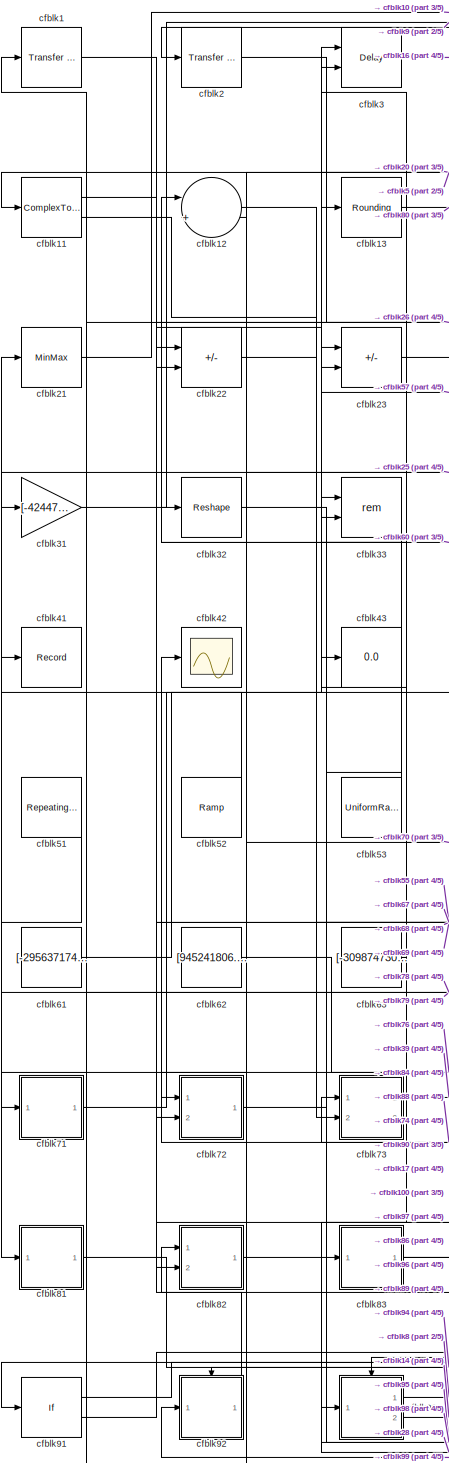
[diagram: root canvas - part 1/5, left side, full height]
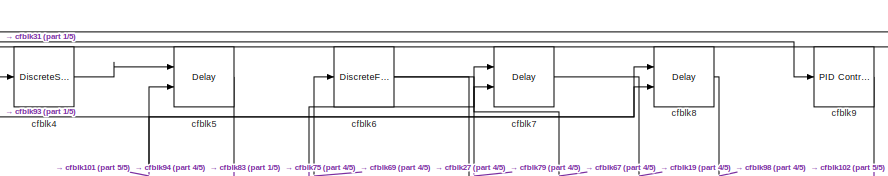
[diagram: root canvas - part 2/5, top center region]
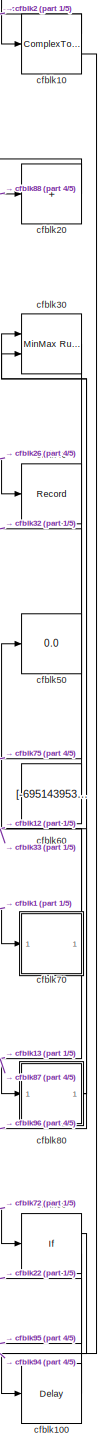
[diagram: root canvas - part 3/5, right side, full height]
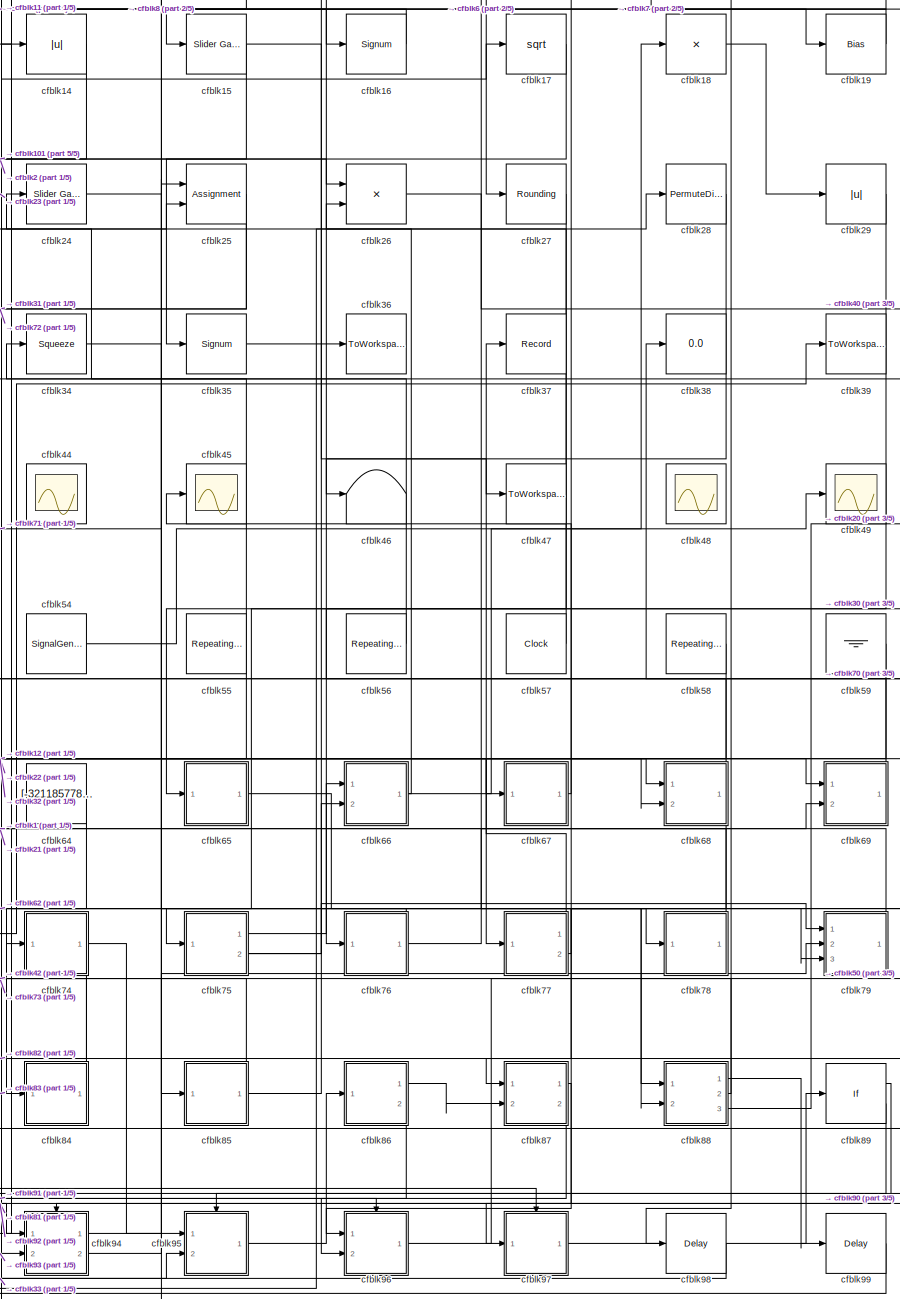
[diagram: root canvas - part 4/5, center side, full height]
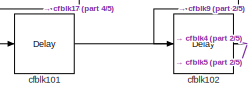
[diagram: root canvas - part 5/5, bottom left region]
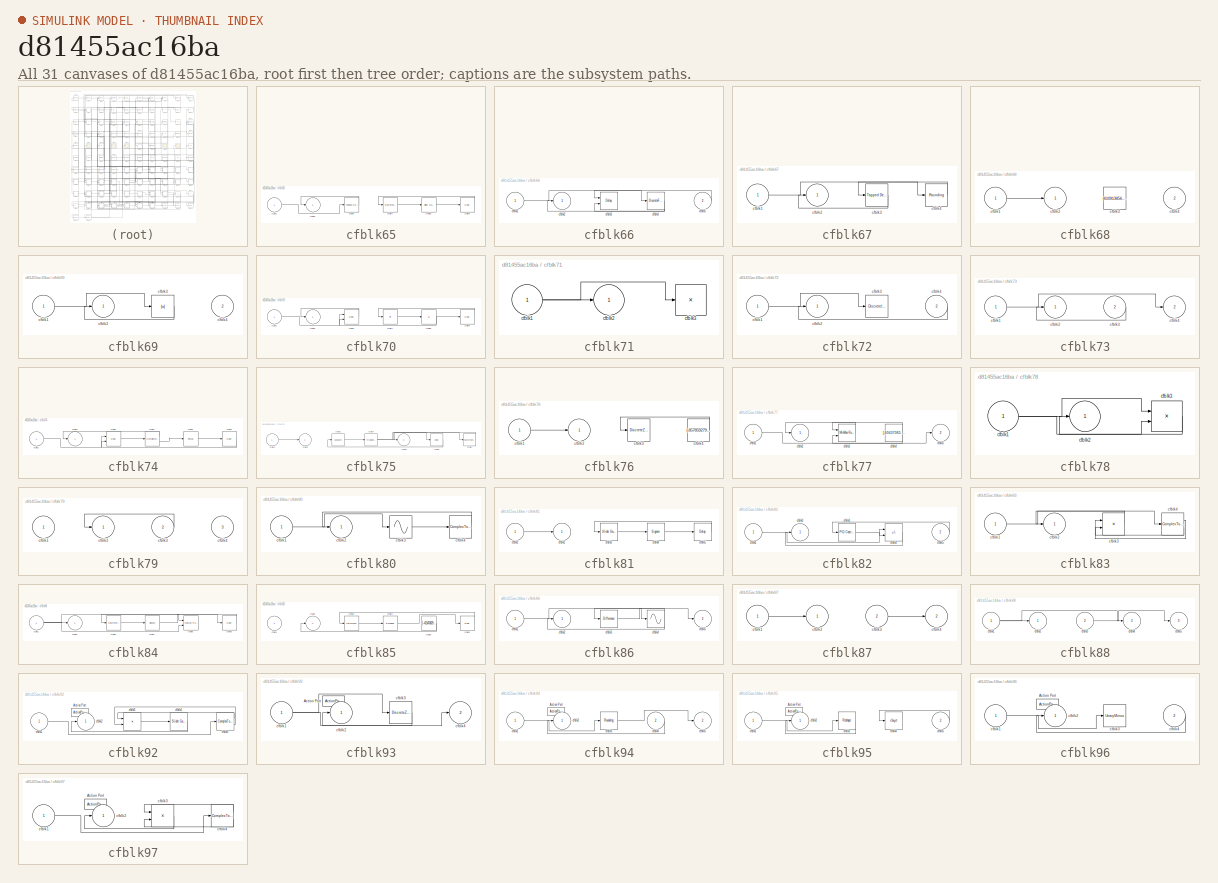
[diagram: thumbnail index - all 31 canvases of the model, root first then tree order]
MODEL slx_d81455ac16ba
KIND model
CONFIG AbsTol = auto
CONFIG EnableMultiTasking = off
CONFIG FixedStep = auto
CONFIG MaxStep = auto
CONFIG MinStep = auto
CONFIG RelTol = 1e-3
CONFIG SampleTimeConstraint = Unconstrained
CONFIG SolverName = VariableStepAuto
CONFIG StartTime = 0.0
CONFIG StopTime = 10.0
BLOCK [Reference] cfblk1  REF=simulink/Discrete/Transfer Fcn
Real Zero
  Ports = [1, 1]
  SourceBlock = simulink/Discrete/Transfer Fcn\nReal Zero
  SourceProductBaseCode = SL
  SourceType = Transfer Fcn Real Zero
BLOCK [ComplexToRealImag] cfblk10
  Ports = [1, 2]
BLOCK [Delay] cfblk100
  InputPortMap = u0
  Ports = [1, 1]
  SampleTime = 1
BLOCK [Delay] cfblk101
  InputPortMap = u0
  Ports = [1, 1]
  SampleTime = 1
BLOCK [Delay] cfblk102
  InputPortMap = u0
  Ports = [1, 1]
  SampleTime = 1
BLOCK [ComplexToRealImag] cfblk11
  Ports = [1, 2]
BLOCK [Sum] cfblk12
  Inputs = |++
  Ports = [2, 1]
BLOCK [Rounding] cfblk13
BLOCK [Abs] cfblk14
  SaturateOnIntegerOverflow = off
BLOCK [Reference] cfblk15  REF=simulink/Math
Operations/Slider
Gain
  Ports = [1, 1]
  SourceBlock = simulink/Math\nOperations/Slider\nGain
  SourceProductBaseCode = SL
  SourceType = Slider Gain
BLOCK [Signum] cfblk16
BLOCK [Sqrt] cfblk17
BLOCK [Product] cfblk18
  Inputs = *
  Ports = [1, 1]
BLOCK [Bias] cfblk19
  Bias = [668959142.646336]
  SaturateOnIntegerOverflow = off
BLOCK [Reference] cfblk2  REF=simulink/Discrete/Transfer Fcn
First Order
  Ports = [1, 1]
  SourceBlock = simulink/Discrete/Transfer Fcn\nFirst Order
  SourceProductBaseCode = SL
  SourceType = First Order Transfer Fcn
BLOCK [Sum] cfblk20
  IconShape = rectangular
  Inputs = +
  Ports = [1, 1]
BLOCK [MinMax] cfblk21
  Ports = [1, 1]
BLOCK [Sum] cfblk22
  IconShape = rectangular
  Inputs = -+
  Ports = [2, 1]
BLOCK [Sum] cfblk23
  IconShape = rectangular
  Inputs = --
  Ports = [2, 1]
BLOCK [Reference] cfblk24  REF=simulink/Math
Operations/Slider
Gain
  Ports = [1, 1]
  SourceBlock = simulink/Math\nOperations/Slider\nGain
  SourceProductBaseCode = SL
  SourceType = Slider Gain
BLOCK [Assignment] cfblk25
  DiagnosticForDimensions = Warning
  IndexOptions = Index vector (dialog)
  Indices = 1
  OutputSizes = 1
  Ports = [2, 1]
BLOCK [Product] cfblk26
  Inputs = **
  Ports = [2, 1]
BLOCK [Rounding] cfblk27
BLOCK [PermuteDimensions] cfblk28
BLOCK [Abs] cfblk29
  SaturateOnIntegerOverflow = off
BLOCK [Delay] cfblk3
  DelayLengthSource = Input port
  InputPortMap = u0,p1
  Ports = [2, 1]
  SampleTime = 1
BLOCK [Reference] cfblk30  REF=simulink/Math
Operations/MinMax
Running
Resettable
  Ports = [2, 1]
  SourceBlock = simulink/Math\nOperations/MinMax\nRunning\nResettable
  SourceProductBaseCode = SL
  SourceType = MinMax Running Resettable
BLOCK [Gain] cfblk31
  Gain = [-424473284.828187]
BLOCK [Reshape] cfblk32
  Ports = [1, 1]
BLOCK [Math] cfblk33
  Operator = rem
  Ports = [2, 1]
BLOCK [Squeeze] cfblk34
BLOCK [Signum] cfblk35
BLOCK [ToWorkspace] cfblk36
  FixptAsFi = on
  MaxDataPoints = inf
  Ports = [1]
  SampleTime = -1
  SaveFormat = Timeseries
  VariableName = kagbklf
BLOCK [Record] cfblk37
  FileSettingsInternal = {"entries":[{"content":{"excelSettings":{"content":{},"type":"Streamout.ExcelSettings"}},"type":"Streamout.FileSettingStorage","uuid":"361a29f1-e2fb-4c0b-8be8-713980ecb456"}],"packageUris":["http://schema.mathworks.com/mf0/streamout_blocks/R2020a"],"version":"1.0"}
  Ports = [1]
  SignalsInternal = {"entries":[{"content":{"signals":[{"content":{"blockPath":["sampleModel186/cfblk37"],"channel":[],"dimensions":[1],"domain":"sampleModel186/cfblk37","lineColor":"#a2142f","plots":[1],"port":1,"sid":[""],"signalID":6959,"signalName":"cfblk77:1"},"type":"RecordBlkView.Signal","uuid":"633224d4-002b-45fd-b44c-2713e6f3cb67"}]},"type":"RecordBlkView.InputSignals","uuid":"d19c6e63-8a72-4a50-befe-2383d5a...<+99ch>
  VisualizationBindings = {"sparklinesplugin":{"info":[{"bindingParametersList":[],"subplotID":1}]}}
BLOCK [Display] cfblk38
  Decimation = 1
  Ports = [1]
BLOCK [ToWorkspace] cfblk39
  FixptAsFi = on
  MaxDataPoints = inf
  Ports = [1]
  SampleTime = -1
  SaveFormat = Timeseries
  VariableName = ojdnert
BLOCK [DiscreteStateSpace] cfblk4
BLOCK [Record] cfblk40
  FileSettingsInternal = {"entries":[{"content":{"excelSettings":{"content":{},"type":"Streamout.ExcelSettings"}},"type":"Streamout.FileSettingStorage","uuid":"335357aa-7939-4387-8d3e-96902769ceac"}],"packageUris":["http://schema.mathworks.com/mf0/streamout_blocks/R2020a"],"version":"1.0"}
  Ports = [1]
  SignalsInternal = {"entries":[{"content":{"signals":[{"content":{"blockPath":["sampleModel186/cfblk40"],"channel":[],"dimensions":[1],"domain":"sampleModel186/cfblk40","lineColor":"#4dbeee","plots":[1],"port":1,"sid":[""],"signalID":6955,"signalName":"cfblk26"},"type":"RecordBlkView.Signal","uuid":"b43d4440-5883-4200-968a-5c1987ee6076"}]},"type":"RecordBlkView.InputSignals","uuid":"f55b186d-9257-4222-a712-8ac48577b...<+97ch>
  VisualizationBindings = {"sparklinesplugin":{"info":[{"bindingParametersList":[],"subplotID":1}]}}
BLOCK [Record] cfblk41
  FileSettingsInternal = {"entries":[{"content":{"excelSettings":{"content":{},"type":"Streamout.ExcelSettings"}},"type":"Streamout.FileSettingStorage","uuid":"56ab8f88-1f3f-40e9-89f9-4753a7ceaef6"}],"packageUris":["http://schema.mathworks.com/mf0/streamout_blocks/R2020a"],"version":"1.0"}
  Ports = [1]
  SignalsInternal = {"entries":[{"content":{"signals":[{"content":{"blockPath":["sampleModel186/cfblk41"],"channel":[],"dimensions":[1],"domain":"sampleModel186/cfblk41","lineColor":"#139fff","plots":[1],"port":1,"sid":[""],"signalID":6963,"signalName":"cfblk52"},"type":"RecordBlkView.Signal","uuid":"2a08bd36-c2ee-4411-9ab5-2944906db4bc"}]},"type":"RecordBlkView.InputSignals","uuid":"1cdacadd-d533-4878-aea6-50ff4e90b...<+97ch>
  VisualizationBindings = {"sparklinesplugin":{"info":[{"bindingParametersList":[],"subplotID":1}]}}
BLOCK [Scope] cfblk42
  Floating = off
  NumInputPorts = 1
  Ports = [1]
BLOCK [Display] cfblk43
  Decimation = 1
  Ports = [1]
BLOCK [Scope] cfblk44
  Floating = on
  NumInputPorts = 1
  Ports = []
BLOCK [Scope] cfblk45
  Floating = off
  NumInputPorts = 1
  Ports = [1]
BLOCK [Terminator] cfblk46
BLOCK [ToWorkspace] cfblk47
  FixptAsFi = on
  MaxDataPoints = inf
  Ports = [1]
  SampleTime = -1
  SaveFormat = Timeseries
  VariableName = fsyfvvt
BLOCK [Scope] cfblk48
  Floating = on
  NumInputPorts = 1
  Ports = []
BLOCK [Scope] cfblk49
  Floating = off
  NumInputPorts = 1
  Ports = [1]
BLOCK [Delay] cfblk5
  DelayLengthSource = Input port
  InputPortMap = u0,p1
  Ports = [2, 1]
  SampleTime = 1
BLOCK [Display] cfblk50
  Decimation = 1
  Ports = [1]
BLOCK [Reference] cfblk51  REF=simulink/Sources/Repeating
Sequence
Stair
  Ports = [0, 1]
  SourceBlock = simulink/Sources/Repeating\nSequence\nStair
  SourceProductBaseCode = SL
  SourceType = Repeating Sequence Stair
BLOCK [Reference] cfblk52  REF=simulink/Sources/Ramp
  Ports = [0, 1]
  SourceBlock = simulink/Sources/Ramp
  SourceProductBaseCode = SL
  SourceType = Ramp
BLOCK [UniformRandomNumber] cfblk53
  Maximum = [1410879306.297932]
  Minimum = [-2789928258.218382]
  SampleTime = 0.1
  Seed = [32986250.000000]
BLOCK [SignalGenerator] cfblk54
  Amplitude = [294604167.686260]
  Ports = [0, 1]
BLOCK [Reference] cfblk55  REF=simulink/Sources/Repeating
Sequence
  Ports = [0, 1]
  SourceBlock = simulink/Sources/Repeating\nSequence
  SourceProductBaseCode = SL
  SourceType = Repeating table
BLOCK [Reference] cfblk56  REF=simulink/Sources/Repeating
Sequence
  Ports = [0, 1]
  SourceBlock = simulink/Sources/Repeating\nSequence
  SourceProductBaseCode = SL
  SourceType = Repeating table
BLOCK [Clock] cfblk57
BLOCK [Reference] cfblk58  REF=simulink/Sources/Repeating
Sequence
Interpolated
  Ports = [0, 1]
  SourceBlock = simulink/Sources/Repeating\nSequence\nInterpolated
  SourceProductBaseCode = SL
  SourceType = Repeating Sequence Interpolated
BLOCK [Ground] cfblk59
BLOCK [DiscreteFilter] cfblk6
  InputPortMap = u0
  Ports = [1, 1]
  SampleTime = 1
BLOCK [Constant] cfblk60
  SampleTime = 1
  Value = [-695143953.286656]
BLOCK [Constant] cfblk61
  SampleTime = 1
  Value = [-295637174.524656]
BLOCK [Constant] cfblk62
  SampleTime = 1
  Value = [945241806.917478]
BLOCK [Constant] cfblk63
  SampleTime = 1
  Value = [-309874730.258494]
BLOCK [Constant] cfblk64
  SampleTime = 1
  Value = [-321185778.514623]
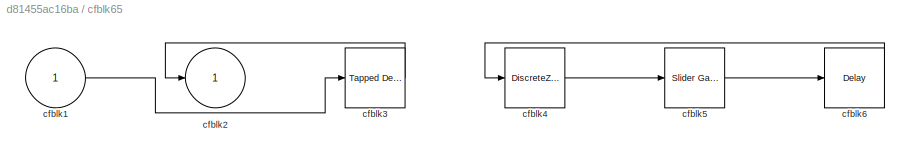
BLOCK [SubSystem] cfblk65
  Ports = [1, 1]
  RequestExecContextInheritance = off
BLOCK [Inport] cfblk65/cfblk1
BLOCK [Outport] cfblk65/cfblk2
BLOCK [Reference] cfblk65/cfblk3  REF=simulink/Discrete/Tapped Delay
  Ports = [1, 1]
  SourceBlock = simulink/Discrete/Tapped Delay
  SourceProductBaseCode = SL
  SourceType = Tapped Delay Line
BLOCK [DiscreteZeroPole] cfblk65/cfblk4
  Gain = 1
  Poles = [0 0.5]
BLOCK [Reference] cfblk65/cfblk5  REF=simulink/Math
Operations/Slider
Gain
  Ports = [1, 1]
  SourceBlock = simulink/Math\nOperations/Slider\nGain
  SourceProductBaseCode = SL
  SourceType = Slider Gain
BLOCK [Delay] cfblk65/cfblk6
  InputPortMap = u0
  Ports = [1, 1]
  SampleTime = 1
BLOCK [SubSystem] cfblk66
  Ports = [2, 1]
  RequestExecContextInheritance = off
BLOCK [Inport] cfblk66/cfblk1
BLOCK [Outport] cfblk66/cfblk2
BLOCK [Delay] cfblk66/cfblk3
  DelayLengthSource = Input port
  InputPortMap = u0,p1
  Ports = [2, 1]
  SampleTime = 1
BLOCK [DiscreteFir] cfblk66/cfblk4
  InputPortMap = u0
  OutputPortMap = o0
  Ports = [1, 1]
  SampleTime = 1
BLOCK [Inport] cfblk66/cfblk5
  Port = 2
BLOCK [SubSystem] cfblk67
  Ports = [1, 1]
  RequestExecContextInheritance = off
BLOCK [Inport] cfblk67/cfblk1
BLOCK [Outport] cfblk67/cfblk2
BLOCK [Reference] cfblk67/cfblk3  REF=simulink/Discrete/Tapped Delay
  Ports = [1, 1]
  SourceBlock = simulink/Discrete/Tapped Delay
  SourceProductBaseCode = SL
  SourceType = Tapped Delay Line
BLOCK [Rounding] cfblk67/cfblk4
BLOCK [SubSystem] cfblk68
  Ports = [2, 1]
  RequestExecContextInheritance = off
BLOCK [Inport] cfblk68/cfblk1
BLOCK [Outport] cfblk68/cfblk2
BLOCK [Constant] cfblk68/cfblk3
  SampleTime = 1
  Value = [610913856.524991]
BLOCK [Inport] cfblk68/cfblk4
  Port = 2
BLOCK [SubSystem] cfblk69
  Ports = [2, 1]
  RequestExecContextInheritance = off
BLOCK [Inport] cfblk69/cfblk1
BLOCK [Outport] cfblk69/cfblk2
BLOCK [Abs] cfblk69/cfblk3
  SaturateOnIntegerOverflow = off
BLOCK [Inport] cfblk69/cfblk4
  Port = 2
BLOCK [Delay] cfblk7
  DelayLengthSource = Input port
  InputPortMap = u0,p1
  Ports = [2, 1]
  SampleTime = 1
BLOCK [SubSystem] cfblk70
  Ports = [1, 1]
  RequestExecContextInheritance = off
BLOCK [Inport] cfblk70/cfblk1
BLOCK [Outport] cfblk70/cfblk2
BLOCK [Delay] cfblk70/cfblk3
  InputPortMap = u0,e6
  Ports = [2, 1]
  SampleTime = 1
  ShowEnablePort = on
BLOCK [Product] cfblk70/cfblk4
  Inputs = *
  Ports = [1, 1]
BLOCK [Sum] cfblk70/cfblk5
  IconShape = rectangular
  Inputs = +
  Ports = [1, 1]
BLOCK [Delay] cfblk70/cfblk6
  InputPortMap = u0
  Ports = [1, 1]
  SampleTime = 1
BLOCK [SubSystem] cfblk71
  Ports = [1, 1]
  RequestExecContextInheritance = off
BLOCK [Inport] cfblk71/cfblk1
BLOCK [Outport] cfblk71/cfblk2
BLOCK [Product] cfblk71/cfblk3
  Inputs = *
  Ports = [1, 1]
BLOCK [SubSystem] cfblk72
  Ports = [2, 1]
  RequestExecContextInheritance = off
BLOCK [Inport] cfblk72/cfblk1
BLOCK [Outport] cfblk72/cfblk2
BLOCK [DiscreteIntegrator] cfblk72/cfblk3
  ICPrevOutput = DiscIntNeverNeededParam
  ICPrevScaledInput = DiscIntNeverNeededParam
  InitialConditionSetting = Auto
  Ports = [1, 1]
BLOCK [Inport] cfblk72/cfblk4
  Port = 2
BLOCK [SubSystem] cfblk73
  Ports = [2, 2]
  RequestExecContextInheritance = off
BLOCK [Inport] cfblk73/cfblk1
BLOCK [Outport] cfblk73/cfblk2
BLOCK [Inport] cfblk73/cfblk3
  Port = 2
BLOCK [Outport] cfblk73/cfblk4
  Port = 2
BLOCK [SubSystem] cfblk74
  Ports = [1, 1]
  RequestExecContextInheritance = off
BLOCK [Inport] cfblk74/cfblk1
BLOCK [Outport] cfblk74/cfblk2
BLOCK [Delay] cfblk74/cfblk3
  DelayLengthSource = Input port
  InputPortMap = u0,p1
  Ports = [2, 1]
  SampleTime = 1
BLOCK [ComplexToRealImag] cfblk74/cfblk4
  Ports = [1, 2]
BLOCK [Polyval] cfblk74/cfblk5
  Coefs = [ +2.081618890e-019, -1.441693666e-014, +4.719686976e-010, -8.536869453e-006, +1.621573104e-001, -8.087801117e+001 ]
BLOCK [Delay] cfblk74/cfblk6
  InputPortMap = u0
  Ports = [1, 1]
  SampleTime = 1
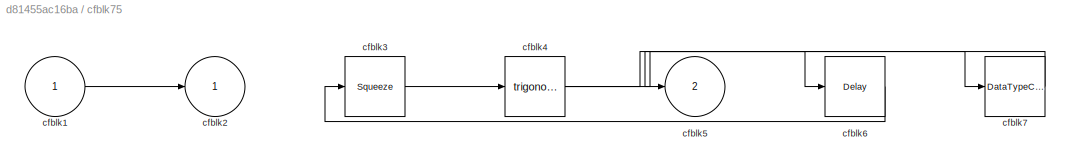
BLOCK [SubSystem] cfblk75
  Ports = [1, 2]
  RequestExecContextInheritance = off
BLOCK [Inport] cfblk75/cfblk1
BLOCK [Outport] cfblk75/cfblk2
BLOCK [Squeeze] cfblk75/cfblk3
BLOCK [Trigonometry] cfblk75/cfblk4
  Ports = [1, 1]
BLOCK [Outport] cfblk75/cfblk5
  Port = 2
BLOCK [Delay] cfblk75/cfblk6
  InputPortMap = u0
  Ports = [1, 1]
  SampleTime = 1
BLOCK [DataTypeConversion] cfblk75/cfblk7
  RndMeth = Floor
  SaturateOnIntegerOverflow = off
BLOCK [SubSystem] cfblk76
  Ports = [1, 1]
  RequestExecContextInheritance = off
BLOCK [Inport] cfblk76/cfblk1
BLOCK [Outport] cfblk76/cfblk2
BLOCK [DiscreteZeroPole] cfblk76/cfblk3
  Gain = 1
  Poles = [0 0.5]
BLOCK [Constant] cfblk76/cfblk4
  SampleTime = 1
  Value = [-857859279.918124]
BLOCK [SubSystem] cfblk77
  Ports = [1, 2]
  RequestExecContextInheritance = off
BLOCK [Inport] cfblk77/cfblk1
BLOCK [Outport] cfblk77/cfblk2
BLOCK [Reference] cfblk77/cfblk3  REF=simulink/Math
Operations/MinMax
Running
Resettable
  Ports = [2, 1]
  SourceBlock = simulink/Math\nOperations/MinMax\nRunning\nResettable
  SourceProductBaseCode = SL
  SourceType = MinMax Running Resettable
BLOCK [Constant] cfblk77/cfblk4
  SampleTime = 1
  Value = [-60437065.252201]
BLOCK [Outport] cfblk77/cfblk5
  Port = 2
BLOCK [SubSystem] cfblk78
  Ports = [1, 1]
  RequestExecContextInheritance = off
BLOCK [Inport] cfblk78/cfblk1
BLOCK [Outport] cfblk78/cfblk2
BLOCK [Product] cfblk78/cfblk3
  Ports = [2, 1]
BLOCK [SubSystem] cfblk79
  Ports = [3, 1]
  RequestExecContextInheritance = off
BLOCK [Inport] cfblk79/cfblk1
BLOCK [Outport] cfblk79/cfblk2
BLOCK [Inport] cfblk79/cfblk3
  Port = 2
BLOCK [Inport] cfblk79/cfblk4
  Port = 3
BLOCK [Delay] cfblk8
  InputPortMap = u0,e6
  Ports = [2, 1]
  SampleTime = 1
  ShowEnablePort = on
BLOCK [SubSystem] cfblk80
  Ports = [1, 1]
  RequestExecContextInheritance = off
BLOCK [Inport] cfblk80/cfblk1
BLOCK [Outport] cfblk80/cfblk2
BLOCK [Sin] cfblk80/cfblk3
  Ports = [1, 1]
  SampleTime = 0
  TimeSource = Use external signal
BLOCK [ComplexToMagnitudeAngle] cfblk80/cfblk4
  Ports = [1, 2]
BLOCK [SubSystem] cfblk81
  Ports = [1, 1]
  RequestExecContextInheritance = off
BLOCK [Inport] cfblk81/cfblk1
BLOCK [Outport] cfblk81/cfblk2
BLOCK [Reference] cfblk81/cfblk3  REF=simulink/Math
Operations/Slider
Gain
  Ports = [1, 1]
  SourceBlock = simulink/Math\nOperations/Slider\nGain
  SourceProductBaseCode = SL
  SourceType = Slider Gain
BLOCK [Signum] cfblk81/cfblk4
BLOCK [Delay] cfblk81/cfblk5
  InputPortMap = u0
  Ports = [1, 1]
  SampleTime = 1
BLOCK [SubSystem] cfblk82
  Ports = [2, 1]
  RequestExecContextInheritance = off
BLOCK [Inport] cfblk82/cfblk1
BLOCK [Outport] cfblk82/cfblk2
BLOCK [Reference] cfblk82/cfblk3  REF=slpidlib/PID Controller
  Ports = [1, 1]
  SourceBlock = slpidlib/PID Controller
  SourceProductBaseCode = SL
  SourceType = PID 1dof
BLOCK [Sum] cfblk82/cfblk4
  IconShape = rectangular
  Inputs = +-
  Ports = [2, 1]
BLOCK [Inport] cfblk82/cfblk5
  Port = 2
BLOCK [SubSystem] cfblk83
  Ports = [1, 1]
  RequestExecContextInheritance = off
BLOCK [Inport] cfblk83/cfblk1
BLOCK [Outport] cfblk83/cfblk2
BLOCK [Product] cfblk83/cfblk3
  Ports = [2, 1]
BLOCK [ComplexToRealImag] cfblk83/cfblk4
  Ports = [1, 2]
BLOCK [SubSystem] cfblk84
  Ports = [1, 1]
  RequestExecContextInheritance = off
BLOCK [Inport] cfblk84/cfblk1
BLOCK [Outport] cfblk84/cfblk2
BLOCK [DiscreteFilter] cfblk84/cfblk3
  InputPortMap = u0
  Ports = [1, 1]
  SampleTime = 1
BLOCK [Signum] cfblk84/cfblk4
BLOCK [Reference] cfblk84/cfblk5  REF=simulink/Math
Operations/MinMax
Running
Resettable
  Ports = [2, 1]
  SourceBlock = simulink/Math\nOperations/MinMax\nRunning\nResettable
  SourceProductBaseCode = SL
  SourceType = MinMax Running Resettable
BLOCK [Delay] cfblk84/cfblk6
  InputPortMap = u0
  Ports = [1, 1]
  SampleTime = 1
BLOCK [SubSystem] cfblk85
  Ports = [1, 1]
  RequestExecContextInheritance = off
BLOCK [Inport] cfblk85/cfblk1
BLOCK [Outport] cfblk85/cfblk2
BLOCK [Reference] cfblk85/cfblk3  REF=simulink/Discrete/Difference
  Ports = [1, 1]
  SourceBlock = simulink/Discrete/Difference
  SourceProductBaseCode = SL
  SourceType = Difference
BLOCK [Rounding] cfblk85/cfblk4
BLOCK [Constant] cfblk85/cfblk5
  SampleTime = 1
  Value = [-411453829.718547]
BLOCK [Delay] cfblk85/cfblk6
  InputPortMap = u0
  Ports = [1, 1]
  SampleTime = 1
BLOCK [SubSystem] cfblk86
  Ports = [1, 2]
  RequestExecContextInheritance = off
BLOCK [Inport] cfblk86/cfblk1
BLOCK [Outport] cfblk86/cfblk2
BLOCK [Reference] cfblk86/cfblk3  REF=simulink/Discrete/Difference
  Ports = [1, 1]
  SourceBlock = simulink/Discrete/Difference
  SourceProductBaseCode = SL
  SourceType = Difference
BLOCK [Sin] cfblk86/cfblk4
  Ports = [1, 1]
  SampleTime = 0
  TimeSource = Use external signal
BLOCK [Outport] cfblk86/cfblk5
  Port = 2
BLOCK [SubSystem] cfblk87
  Ports = [2, 2]
  RequestExecContextInheritance = off
BLOCK [Inport] cfblk87/cfblk1
BLOCK [Outport] cfblk87/cfblk2
BLOCK [Inport] cfblk87/cfblk3
  Port = 2
BLOCK [Outport] cfblk87/cfblk4
  Port = 2
BLOCK [SubSystem] cfblk88
  Ports = [2, 3]
  RequestExecContextInheritance = off
BLOCK [Inport] cfblk88/cfblk1
BLOCK [Outport] cfblk88/cfblk2
BLOCK [Inport] cfblk88/cfblk3
  Port = 2
BLOCK [Outport] cfblk88/cfblk4
  Port = 2
BLOCK [Outport] cfblk88/cfblk5
  Port = 3
BLOCK [If] cfblk89
  IfExpression = u1 >= 0
  Ports = [1, 2]
  SampleTime = 1
BLOCK [Reference] cfblk9  REF=slpidlib/PID Controller
  Ports = [1, 1]
  SourceBlock = slpidlib/PID Controller
  SourceProductBaseCode = SL
  SourceType = PID 1dof
BLOCK [If] cfblk90
  IfExpression = u1 >= 0
  Ports = [1, 2]
  SampleTime = 1
BLOCK [If] cfblk91
  IfExpression = u1 >= 0
  Ports = [1, 2]
  SampleTime = 1
BLOCK [SubSystem] cfblk92
  Ports = [1, 1, 0, 0, 0, 0, 0, 1]
  RequestExecContextInheritance = off
  TreatAsAtomicUnit = on
BLOCK [ActionPort] cfblk92/Action Port
  ActionPortLabel = if(u1 >= 0)
BLOCK [Inport] cfblk92/cfblk1
BLOCK [Outport] cfblk92/cfblk2
BLOCK [Product] cfblk92/cfblk3
  Ports = [2, 1]
BLOCK [Reference] cfblk92/cfblk4  REF=simulink/Math
Operations/Slider
Gain
  Ports = [1, 1]
  SourceBlock = simulink/Math\nOperations/Slider\nGain
  SourceProductBaseCode = SL
  SourceType = Slider Gain
BLOCK [ComplexToMagnitudeAngle] cfblk92/cfblk5
  Ports = [1, 2]
BLOCK [SubSystem] cfblk93
  Ports = [1, 2, 0, 0, 0, 0, 0, 1]
  RequestExecContextInheritance = off
  TreatAsAtomicUnit = on
BLOCK [ActionPort] cfblk93/Action Port
  ActionPortLabel = else
BLOCK [Inport] cfblk93/cfblk1
BLOCK [Outport] cfblk93/cfblk2
BLOCK [DiscreteZeroPole] cfblk93/cfblk3
  Gain = 1
  Poles = [0 0.5]
  SampleTime = -1
BLOCK [Outport] cfblk93/cfblk4
  Port = 2
BLOCK [SubSystem] cfblk94
  Ports = [2, 2, 0, 0, 0, 0, 0, 1]
  RequestExecContextInheritance = off
  TreatAsAtomicUnit = on
BLOCK [ActionPort] cfblk94/Action Port
  ActionPortLabel = if(u1 >= 0)
BLOCK [Inport] cfblk94/cfblk1
BLOCK [Outport] cfblk94/cfblk2
BLOCK [Rounding] cfblk94/cfblk3
BLOCK [Inport] cfblk94/cfblk4
  Port = 2
BLOCK [Outport] cfblk94/cfblk5
  Port = 2
BLOCK [SubSystem] cfblk95
  Ports = [2, 1, 0, 0, 0, 0, 0, 1]
  RequestExecContextInheritance = off
  TreatAsAtomicUnit = on
BLOCK [ActionPort] cfblk95/Action Port
  ActionPortLabel = else
BLOCK [Inport] cfblk95/cfblk1
BLOCK [Outport] cfblk95/cfblk2
BLOCK [Reshape] cfblk95/cfblk3
  Ports = [1, 1]
BLOCK [Sqrt] cfblk95/cfblk4
  AlgorithmType = Newton-Raphson
  Operator = rSqrt
BLOCK [Inport] cfblk95/cfblk5
  Port = 2
BLOCK [SubSystem] cfblk96
  Ports = [2, 1, 0, 0, 0, 0, 0, 1]
  RequestExecContextInheritance = off
  TreatAsAtomicUnit = on
BLOCK [ActionPort] cfblk96/Action Port
  ActionPortLabel = if(u1 >= 0)
BLOCK [Inport] cfblk96/cfblk1
BLOCK [Outport] cfblk96/cfblk2
BLOCK [UnaryMinus] cfblk96/cfblk3
BLOCK [Inport] cfblk96/cfblk4
  Port = 2
BLOCK [SubSystem] cfblk97
  Ports = [1, 1, 0, 0, 0, 0, 0, 1]
  RequestExecContextInheritance = off
  TreatAsAtomicUnit = on
BLOCK [ActionPort] cfblk97/Action Port
  ActionPortLabel = else
BLOCK [Inport] cfblk97/cfblk1
BLOCK [Outport] cfblk97/cfblk2
BLOCK [Product] cfblk97/cfblk3
  Ports = [2, 1]
BLOCK [ComplexToMagnitudeAngle] cfblk97/cfblk4
  Ports = [1, 2]
BLOCK [Delay] cfblk98
  InputPortMap = u0
  Ports = [1, 1]
  SampleTime = 1
BLOCK [Delay] cfblk99
  InputPortMap = u0
  Ports = [1, 1]
  SampleTime = 1
LINE cfblk100:1 -> cfblk22:1
LINE cfblk101:1 -> cfblk5:2
LINE cfblk102:1 -> cfblk4:1
LINE cfblk10:1 -> cfblk2:1
LINE cfblk10:2 -> cfblk100:1
LINE cfblk11:1 -> cfblk23:1
LINE cfblk11:2 -> cfblk73:2
LINE cfblk12:1 -> cfblk68:1
LINE cfblk13:1 -> cfblk80:1
LINE cfblk14:1 -> cfblk22:2
NET cfblk15:1 -> cfblk35:1, cfblk47:1
LINE cfblk16:1 -> cfblk11:1
LINE cfblk17:1 -> cfblk101:1
LINE cfblk18:1 -> cfblk29:1
LINE cfblk19:1 -> cfblk15:1
LINE cfblk1:1 -> cfblk70:1
LINE cfblk20:1 -> cfblk13:1
LINE cfblk21:1 -> cfblk10:1
LINE cfblk22:1 -> cfblk69:1
LINE cfblk23:1 -> cfblk68:2
LINE cfblk24:1 -> cfblk85:1
NET cfblk25:1 -> cfblk31:1, cfblk72:1
LINE cfblk26:1 -> cfblk40:1
LINE cfblk27:1 -> cfblk65:1
LINE cfblk28:1 -> cfblk46:1
LINE cfblk29:1 -> cfblk76:1
LINE cfblk2:1 -> cfblk26:1
LINE cfblk30:1 -> cfblk75:1
LINE cfblk31:1 -> cfblk9:1
LINE cfblk32:1 -> cfblk67:1
LINE cfblk33:1 -> cfblk95:2
LINE cfblk34:1 -> cfblk78:1
LINE cfblk35:1 -> cfblk36:1
LINE cfblk3:1 -> cfblk16:1
LINE cfblk4:1 -> cfblk5:1
LINE cfblk51:1 -> cfblk81:1
LINE cfblk52:1 -> cfblk41:1
LINE cfblk53:1 -> cfblk12:1
LINE cfblk54:1 -> cfblk18:1
NET cfblk55:1 -> cfblk24:1, cfblk72:2
LINE cfblk56:1 -> cfblk34:1
LINE cfblk57:1 -> cfblk3:1
LINE cfblk58:1 -> cfblk94:2
LINE cfblk59:1 -> cfblk77:1
LINE cfblk5:1 -> cfblk83:1
LINE cfblk60:1 -> cfblk32:1
LINE cfblk61:1 -> cfblk23:2
LINE cfblk62:1 -> cfblk88:2
NET cfblk63:1 -> cfblk33:1, cfblk3:2
LINE cfblk64:1 -> cfblk84:1
LINE cfblk65/cfblk1:1 -> cfblk65/cfblk3:1
LINE cfblk65/cfblk3:1 -> cfblk65/cfblk2:1
LINE cfblk65/cfblk4:1 -> cfblk65/cfblk5:1
LINE cfblk65/cfblk5:1 -> cfblk65/cfblk6:1
LINE cfblk65/cfblk6:1 -> cfblk65/cfblk4:1
LINE cfblk65:1 -> cfblk88:1
LINE cfblk66/cfblk1:1 -> cfblk66/cfblk4:1
NET cfblk66/cfblk4:1 -> cfblk66/cfblk2:1, cfblk66/cfblk3:2
LINE cfblk66/cfblk5:1 -> cfblk66/cfblk3:1
NET cfblk66:1 -> cfblk26:2, cfblk49:1
LINE cfblk67/cfblk1:1 -> cfblk67/cfblk4:1
LINE cfblk67/cfblk3:1 -> cfblk67/cfblk2:1
LINE cfblk67/cfblk4:1 -> cfblk67/cfblk3:1
LINE cfblk67:1 -> cfblk7:1
LINE cfblk68/cfblk1:1 -> cfblk68/cfblk2:1
NET cfblk68:1 -> cfblk38:1, cfblk97:1
LINE cfblk69/cfblk1:1 -> cfblk69/cfblk3:1
LINE cfblk69/cfblk3:1 -> cfblk69/cfblk2:1
LINE cfblk69:1 -> cfblk6:1
NET cfblk6:1 -> cfblk27:1, cfblk79:3
LINE cfblk70/cfblk1:1 -> cfblk70/cfblk3:2
LINE cfblk70/cfblk3:1 -> cfblk70/cfblk2:1
LINE cfblk70/cfblk4:1 -> cfblk70/cfblk5:1
NET cfblk70/cfblk5:1 -> cfblk70/cfblk3:1, cfblk70/cfblk6:1
LINE cfblk70/cfblk6:1 -> cfblk70/cfblk4:1
NET cfblk70:1 -> cfblk12:2, cfblk33:2, cfblk87:1
NET cfblk71/cfblk1:1 -> cfblk71/cfblk2:1, cfblk71/cfblk3:1
LINE cfblk71:1 -> cfblk25:1
LINE cfblk72/cfblk1:1 -> cfblk72/cfblk3:1
LINE cfblk72/cfblk4:1 -> cfblk72/cfblk2:1
LINE cfblk72:1 -> cfblk90:1
LINE cfblk73/cfblk1:1 -> cfblk73/cfblk4:1
LINE cfblk73/cfblk3:1 -> cfblk73/cfblk2:1
LINE cfblk73:1 -> cfblk39:1
LINE cfblk73:2 -> cfblk43:1
LINE cfblk74/cfblk1:1 -> cfblk74/cfblk3:1
LINE cfblk74/cfblk3:1 -> cfblk74/cfblk4:1
LINE cfblk74/cfblk4:1 -> cfblk74/cfblk2:1
LINE cfblk74/cfblk4:2 -> cfblk74/cfblk5:1
LINE cfblk74/cfblk5:1 -> cfblk74/cfblk6:1
LINE cfblk74/cfblk6:1 -> cfblk74/cfblk3:2
NET cfblk74:1 -> cfblk82:2, cfblk95:1
LINE cfblk75/cfblk1:1 -> cfblk75/cfblk2:1
LINE cfblk75/cfblk3:1 -> cfblk75/cfblk4:1
NET cfblk75/cfblk4:1 -> cfblk75/cfblk6:1, cfblk75/cfblk7:1
LINE cfblk75/cfblk6:1 -> cfblk75/cfblk3:1
LINE cfblk75/cfblk7:1 -> cfblk75/cfblk5:1
LINE cfblk75:1 -> cfblk66:1
NET cfblk75:2 -> cfblk79:1, cfblk7:2
LINE cfblk76/cfblk1:1 -> cfblk76/cfblk2:1
LINE cfblk76/cfblk4:1 -> cfblk76/cfblk3:1
NET cfblk76:1 -> cfblk69:2, cfblk71:1
LINE cfblk77/cfblk1:1 -> cfblk77/cfblk5:1
LINE cfblk77/cfblk3:1 -> cfblk77/cfblk2:1
NET cfblk77/cfblk4:1 -> cfblk77/cfblk3:1, cfblk77/cfblk3:2
LINE cfblk77:1 -> cfblk37:1
LINE cfblk77:2 -> cfblk45:1
NET cfblk78/cfblk1:1 -> cfblk78/cfblk3:1, cfblk78/cfblk3:2
LINE cfblk78/cfblk3:1 -> cfblk78/cfblk2:1
LINE cfblk78:1 -> cfblk1:1
LINE cfblk79/cfblk3:1 -> cfblk79/cfblk2:1
LINE cfblk79:1 -> cfblk21:1
LINE cfblk7:1 -> cfblk19:1
LINE cfblk80/cfblk1:1 -> cfblk80/cfblk3:1
LINE cfblk80/cfblk3:1 -> cfblk80/cfblk4:1
LINE cfblk80/cfblk4:1 -> cfblk80/cfblk2:1
NET cfblk80:1 -> cfblk30:1, cfblk30:2
LINE cfblk81/cfblk1:1 -> cfblk81/cfblk2:1
LINE cfblk81/cfblk3:1 -> cfblk81/cfblk4:1
LINE cfblk81/cfblk4:1 -> cfblk81/cfblk5:1
LINE cfblk81/cfblk5:1 -> cfblk81/cfblk3:1
LINE cfblk81:1 -> cfblk94:1
LINE cfblk82/cfblk1:1 -> cfblk82/cfblk4:1
LINE cfblk82/cfblk3:1 -> cfblk82/cfblk4:2
LINE cfblk82/cfblk4:1 -> cfblk82/cfblk2:1
LINE cfblk82/cfblk5:1 -> cfblk82/cfblk3:1
LINE cfblk82:1 -> cfblk28:1
LINE cfblk83/cfblk1:1 -> cfblk83/cfblk4:1
LINE cfblk83/cfblk3:1 -> cfblk83/cfblk2:1
LINE cfblk83/cfblk4:1 -> cfblk83/cfblk3:1
LINE cfblk83/cfblk4:2 -> cfblk83/cfblk3:2
NET cfblk83:1 -> cfblk17:1, cfblk25:2
NET cfblk84/cfblk1:1 -> cfblk84/cfblk2:1, cfblk84/cfblk5:1, cfblk84/cfblk5:2
LINE cfblk84/cfblk3:1 -> cfblk84/cfblk4:1
LINE cfblk84/cfblk4:1 -> cfblk84/cfblk6:1
LINE cfblk84/cfblk6:1 -> cfblk84/cfblk3:1
LINE cfblk84:1 -> cfblk42:1
LINE cfblk85/cfblk3:1 -> cfblk85/cfblk4:1
LINE cfblk85/cfblk4:1 -> cfblk85/cfblk6:1
LINE cfblk85/cfblk5:1 -> cfblk85/cfblk2:1
LINE cfblk85/cfblk6:1 -> cfblk85/cfblk3:1
NET cfblk85:1 -> cfblk66:2, cfblk74:1
LINE cfblk86/cfblk1:1 -> cfblk86/cfblk4:1
LINE cfblk86/cfblk3:1 -> cfblk86/cfblk5:1
NET cfblk86/cfblk4:1 -> cfblk86/cfblk2:1, cfblk86/cfblk3:1
LINE cfblk86:1 -> cfblk87:2
LINE cfblk86:2 -> cfblk91:1
LINE cfblk87/cfblk1:1 -> cfblk87/cfblk2:1
LINE cfblk87/cfblk3:1 -> cfblk87/cfblk4:1
LINE cfblk87:1 -> cfblk96:1
LINE cfblk87:2 -> cfblk96:2
NET cfblk88/cfblk1:1 -> cfblk88/cfblk2:1, cfblk88/cfblk4:1
LINE cfblk88/cfblk3:1 -> cfblk88/cfblk5:1
LINE cfblk88:1 -> cfblk99:1
LINE cfblk88:2 -> cfblk73:1
LINE cfblk88:3 -> cfblk20:1
LINE cfblk89:1 -> cfblk92:ifaction
LINE cfblk89:2 -> cfblk93:ifaction
LINE cfblk8:1 -> cfblk98:1
LINE cfblk90:1 -> cfblk94:ifaction
LINE cfblk90:2 -> cfblk95:ifaction
LINE cfblk91:1 -> cfblk96:ifaction
LINE cfblk91:2 -> cfblk97:ifaction
LINE cfblk92/cfblk1:1 -> cfblk92/cfblk5:1
LINE cfblk92/cfblk3:1 -> cfblk92/cfblk4:1
LINE cfblk92/cfblk4:1 -> cfblk92/cfblk2:1
LINE cfblk92/cfblk5:1 -> cfblk92/cfblk3:1
LINE cfblk92/cfblk5:2 -> cfblk92/cfblk3:2
LINE cfblk92:1 -> cfblk82:1
NET cfblk93/cfblk1:1 -> cfblk93/cfblk3:1, cfblk93/cfblk4:1
LINE cfblk93/cfblk3:1 -> cfblk93/cfblk2:1
LINE cfblk93:1 -> cfblk8:1
LINE cfblk93:2 -> cfblk14:1
LINE cfblk94/cfblk1:1 -> cfblk94/cfblk3:1
LINE cfblk94/cfblk3:1 -> cfblk94/cfblk5:1
LINE cfblk94/cfblk4:1 -> cfblk94/cfblk2:1
LINE cfblk94:1 -> cfblk8:2
LINE cfblk94:2 -> cfblk79:2
LINE cfblk95/cfblk1:1 -> cfblk95/cfblk3:1
LINE cfblk95/cfblk3:1 -> cfblk95/cfblk2:1
LINE cfblk95/cfblk5:1 -> cfblk95/cfblk4:1
LINE cfblk95:1 -> cfblk86:1
LINE cfblk96/cfblk1:1 -> cfblk96/cfblk3:1
LINE cfblk96/cfblk4:1 -> cfblk96/cfblk2:1
LINE cfblk96:1 -> cfblk50:1
LINE cfblk97/cfblk1:1 -> cfblk97/cfblk4:1
LINE cfblk97/cfblk3:1 -> cfblk97/cfblk2:1
LINE cfblk97/cfblk4:1 -> cfblk97/cfblk3:1
LINE cfblk97/cfblk4:2 -> cfblk97/cfblk3:2
LINE cfblk97:1 -> cfblk89:1
LINE cfblk98:1 -> cfblk93:1
LINE cfblk99:1 -> cfblk92:1
LINE cfblk9:1 -> cfblk102:1
note: NET lines group one-source signal fan-out (src -> all destinations, sorted); 1:1 wires keep LINE
